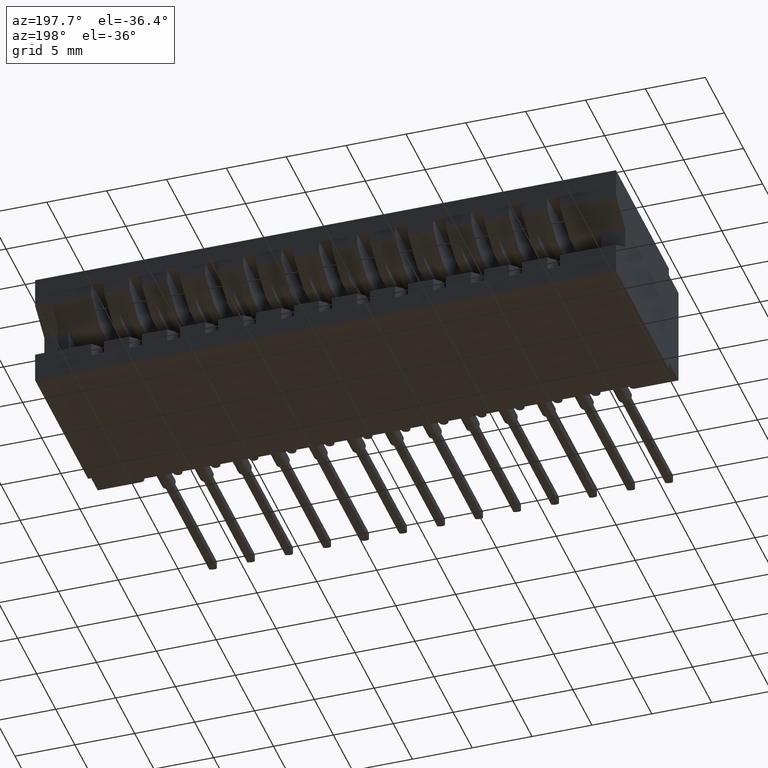
[diagram: clean part render]
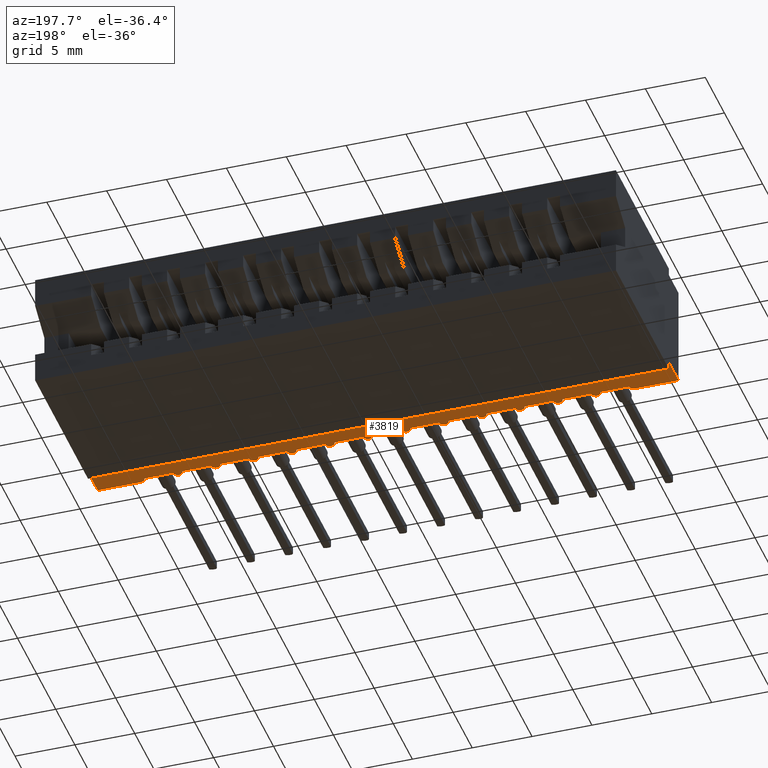
[diagram: same view with one face highlighted and labeled with its STEP entity id]
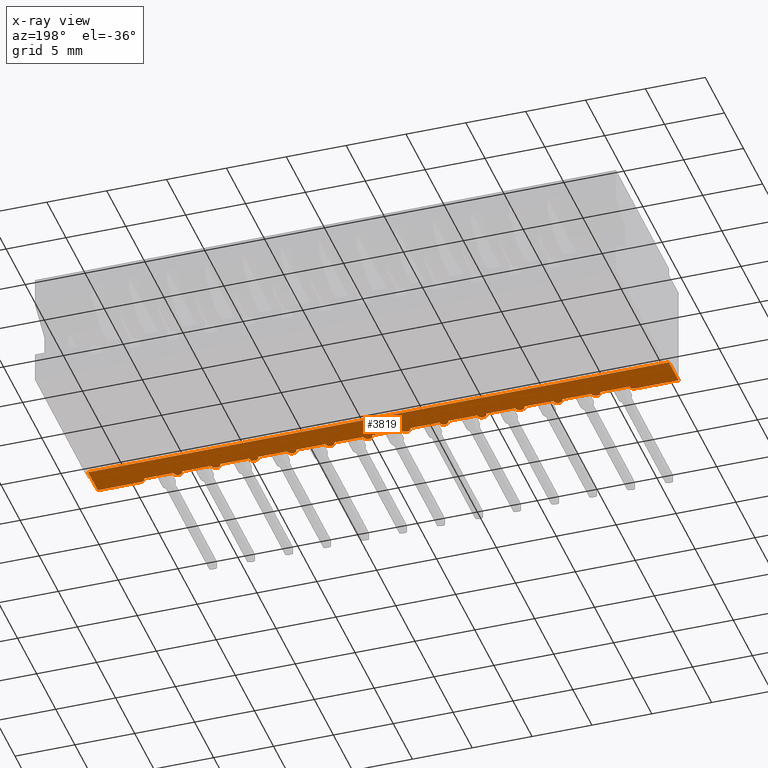
[diagram: x-ray of the same camera — body ghosted, the highlighted face saturated]
A machine part, auxiliary view. The second image highlights one B-rep face of the part: STEP entity #3819.
The next image is the same camera in x-ray: the body ghosted, the highlighted face saturated — about 0% of this face is hidden behind the body in this view.
In plain terms, the highlighted planar face has unit normal (0, 0, 1).
Its self-contained STEP definition (entity closure, byte-faithful):
#3 = LINE ( 'NONE', #16365, #18993 ) ;
#11 = LINE ( 'NONE', #23707, #7784 ) ;
#78 = CARTESIAN_POINT ( 'NONE',  ( 1.657499999999999529, 0.01499999999999997169, -0.3649999999999999911 ) ) ;
#289 = VERTEX_POINT ( 'NONE', #14253 ) ;
#305 = CARTESIAN_POINT ( 'NONE',  ( 1.909999999999999920, 0.0000000000000000000, -0.3649999999999999911 ) ) ;
#367 = DIRECTION ( 'NONE',  ( -0.0000000000000000000, -0.0000000000000000000, -1.000000000000000000 ) ) ;
#404 = ORIENTED_EDGE ( 'NONE', *, *, #23722, .F. ) ;
#445 = CIRCLE ( 'NONE', #5417, 0.01499999999999997689 ) ;
#456 = CARTESIAN_POINT ( 'NONE',  ( 0.6839999999999996083, 0.01499999999999996302, -0.3649999999999999911 ) ) ;
#746 = AXIS2_PLACEMENT_3D ( 'NONE', #16876, #5905, #9654 ) ;
#812 = CIRCLE ( 'NONE', #14254, 0.01499999999999997689 ) ;
#927 = DIRECTION ( 'NONE',  ( 1.000000000000000000, 0.0000000000000000000, 0.0000000000000000000 ) ) ;
#994 = VECTOR ( 'NONE', #19040, 39.37007874015748143 ) ;
#1013 = VERTEX_POINT ( 'NONE', #5692 ) ;
#1192 = ORIENTED_EDGE ( 'NONE', *, *, #19619, .F. ) ;
#1257 = DIRECTION ( 'NONE',  ( 1.000000000000000000, 0.0000000000000000000, 0.0000000000000000000 ) ) ;
#1279 = VECTOR ( 'NONE', #14321, 39.37007874015748143 ) ;
#1344 = EDGE_CURVE ( 'NONE', #21808, #8223, #14830, .T. ) ;
#1346 = DIRECTION ( 'NONE',  ( 0.0000000000000000000, 1.000000000000000000, 0.0000000000000000000 ) ) ;
#1418 = ORIENTED_EDGE ( 'NONE', *, *, #14898, .T. ) ;
#1490 = VECTOR ( 'NONE', #2899, 39.37007874015748143 ) ;
#1604 = LINE ( 'NONE', #7256, #14148 ) ;
#1723 = EDGE_CURVE ( 'NONE', #7006, #11802, #11, .T. ) ;
#1998 = ORIENTED_EDGE ( 'NONE', *, *, #8717, .F. ) ;
#2004 = EDGE_CURVE ( 'NONE', #11294, #20401, #2978, .T. ) ;
#2370 = ORIENTED_EDGE ( 'NONE', *, *, #3331, .T. ) ;
#2393 = EDGE_CURVE ( 'NONE', #11654, #14388, #7788, .T. ) ;
#2439 = VERTEX_POINT ( 'NONE', #20782 ) ;
#2530 = CARTESIAN_POINT ( 'NONE',  ( 1.502499999999999503, 0.01499999999999997169, -0.3649999999999999911 ) ) ;
#2607 = AXIS2_PLACEMENT_3D ( 'NONE', #8562, #17700, #20964 ) ;
#2624 = DIRECTION ( 'NONE',  ( 1.000000000000000000, -0.0000000000000000000, -2.307304048702925122E-16 ) ) ;
#2731 = VERTEX_POINT ( 'NONE', #78 ) ;
#2733 = AXIS2_PLACEMENT_3D ( 'NONE', #2844, #14042, #14275 ) ;
#2757 = VECTOR ( 'NONE', #8185, 39.37007874015748143 ) ;
#2838 = DIRECTION ( 'NONE',  ( 0.0000000000000000000, 0.0000000000000000000, 1.000000000000000000 ) ) ;
#2839 = EDGE_CURVE ( 'NONE', #11433, #18374, #7875, .T. ) ;
#2844 = CARTESIAN_POINT ( 'NONE',  ( 0.7674999999999996270, 0.01499999999999997169, -0.3649999999999999911 ) ) ;
#2872 = ORIENTED_EDGE ( 'NONE', *, *, #4339, .F. ) ;
#2894 = CARTESIAN_POINT ( 'NONE',  ( 1.909999999999999920, 0.0000000000000000000, -0.3649999999999999911 ) ) ;
#2899 = DIRECTION ( 'NONE',  ( 1.000000000000000000, -0.0000000000000000000, -2.307304048702925122E-16 ) ) ;
#2939 = VECTOR ( 'NONE', #8953, 39.37007874015748143 ) ;
#2978 = LINE ( 'NONE', #10207, #22774 ) ;
#3026 = CIRCLE ( 'NONE', #22626, 0.01500000000000001159 ) ;
#3081 = VECTOR ( 'NONE', #12192, 39.37007874015748143 ) ;
#3203 = EDGE_CURVE ( 'NONE', #15241, #3333, #12042, .T. ) ;
#3331 = EDGE_CURVE ( 'NONE', #19778, #5446, #12629, .T. ) ;
#3333 = VERTEX_POINT ( 'NONE', #3702 ) ;
#3348 = CARTESIAN_POINT ( 'NONE',  ( 1.157499999999999751, 0.01499999999999997169, -0.3649999999999999911 ) ) ;
#3415 = DIRECTION ( 'NONE',  ( 1.000000000000000000, -0.0000000000000000000, -2.307304048702925122E-16 ) ) ;
#3466 = ORIENTED_EDGE ( 'NONE', *, *, #5259, .F. ) ;
#3543 = VERTEX_POINT ( 'NONE', #9948 ) ;
#3553 = DIRECTION ( 'NONE',  ( 0.0000000000000000000, 0.0000000000000000000, 1.000000000000000000 ) ) ;
#3634 = CARTESIAN_POINT ( 'NONE',  ( 1.392499999999999627, 0.01499999999999997169, -0.3649999999999999911 ) ) ;
#3650 = DIRECTION ( 'NONE',  ( 0.0000000000000000000, 0.0000000000000000000, 1.000000000000000000 ) ) ;
#3702 = CARTESIAN_POINT ( 'NONE',  ( 1.252499999999999503, 0.01499999999999997169, -0.3649999999999999911 ) ) ;
#3789 = CIRCLE ( 'NONE', #6457, 0.01499999999999997689 ) ;
#3819 = ADVANCED_FACE ( 'NONE', ( #18598 ), #11500, .F. ) ;
#4021 = VECTOR ( 'NONE', #8564, 39.37007874015748143 ) ;
#4167 = EDGE_CURVE ( 'NONE', #11577, #4278, #23267, .T. ) ;
#4278 = VERTEX_POINT ( 'NONE', #2530 ) ;
#4312 = ORIENTED_EDGE ( 'NONE', *, *, #5236, .F. ) ;
#4339 = EDGE_CURVE ( 'NONE', #10346, #18213, #19870, .T. ) ;
#4448 = DIRECTION ( 'NONE',  ( 0.0000000000000000000, 0.0000000000000000000, 1.000000000000000000 ) ) ;
#4610 = EDGE_CURVE ( 'NONE', #18374, #5446, #6358, .T. ) ;
#4764 = ORIENTED_EDGE ( 'NONE', *, *, #8822, .T. ) ;
#4950 = CARTESIAN_POINT ( 'NONE',  ( 0.1574999999999997236, 0.01499999999999997169, -0.3649999999999999911 ) ) ;
#4956 = DIRECTION ( 'NONE',  ( 0.0000000000000000000, 0.0000000000000000000, 1.000000000000000000 ) ) ;
#5111 = DIRECTION ( 'NONE',  ( 0.0000000000000000000, 0.0000000000000000000, 1.000000000000000000 ) ) ;
#5236 = EDGE_CURVE ( 'NONE', #20401, #2439, #6051, .T. ) ;
#5259 = EDGE_CURVE ( 'NONE', #10938, #2731, #812, .T. ) ;
#5309 = CARTESIAN_POINT ( 'NONE',  ( 1.909999999999999920, 0.0000000000000000000, -0.3649999999999999911 ) ) ;
#5346 = DIRECTION ( 'NONE',  ( 1.000000000000000000, 0.0000000000000000000, 0.0000000000000000000 ) ) ;
#5350 = ORIENTED_EDGE ( 'NONE', *, *, #19303, .F. ) ;
#5417 = AXIS2_PLACEMENT_3D ( 'NONE', #6658, #4956, #1257 ) ;
#5446 = VERTEX_POINT ( 'NONE', #7524 ) ;
#5536 = DIRECTION ( 'NONE',  ( 0.0000000000000000000, 0.0000000000000000000, 1.000000000000000000 ) ) ;
#5692 = CARTESIAN_POINT ( 'NONE',  ( 1.532499999999999529, 0.01499999999999997169, -0.3649999999999999911 ) ) ;
#5726 = VECTOR ( 'NONE', #3415, 39.37007874015748143 ) ;
#5732 = EDGE_LOOP ( 'NONE', ( #404, #3466, #18938, #8465, #20448, #22661, #2872, #18670, #23442, #17366, #14878, #1192, #10544, #18298, #9575, #8849, #8757, #15620, #5350, #1998, #16289, #11770, #11437, #4312, #6164, #1418, #9061, #2370, #17419, #18704, #4764, #11850 ) ) ;
#5905 = DIRECTION ( 'NONE',  ( 0.0000000000000000000, 0.0000000000000000000, 1.000000000000000000 ) ) ;
#5966 = DIRECTION ( 'NONE',  ( 1.000000000000000000, -0.0000000000000000000, -2.307304048702925122E-16 ) ) ;
#6021 = LINE ( 'NONE', #13393, #1490 ) ;
#6051 = CIRCLE ( 'NONE', #15399, 0.01500000000000001159 ) ;
#6158 = CARTESIAN_POINT ( 'NONE',  ( 0.7824999999999997513, 0.01499999999999997169, -0.3649999999999999911 ) ) ;
#6164 = ORIENTED_EDGE ( 'NONE', *, *, #2004, .F. ) ;
#6299 = CARTESIAN_POINT ( 'NONE',  ( 0.3924999999999996825, 0.01499999999999997169, -0.3649999999999999911 ) ) ;
#6358 = LINE ( 'NONE', #15040, #22347 ) ;
#6457 = AXIS2_PLACEMENT_3D ( 'NONE', #15480, #2838, #927 ) ;
#6495 = CARTESIAN_POINT ( 'NONE',  ( 0.3774999999999996692, 0.01499999999999997169, -0.3649999999999999911 ) ) ;
#6658 = CARTESIAN_POINT ( 'NONE',  ( 1.142499999999999627, 0.01499999999999997169, -0.3649999999999999911 ) ) ;
#6659 = AXIS2_PLACEMENT_3D ( 'NONE', #10526, #3553, #20164 ) ;
#6768 = CARTESIAN_POINT ( 'NONE',  ( 1.433999999999999719, 0.01499999999999996302, -0.3649999999999999911 ) ) ;
#6818 = CARTESIAN_POINT ( 'NONE',  ( 0.0000000000000000000, 0.0000000000000000000, -0.3649999999999999911 ) ) ;
#6823 = CIRCLE ( 'NONE', #2607, 0.01499999999999997689 ) ;
#6962 = LINE ( 'NONE', #17572, #1279 ) ;
#6975 = DIRECTION ( 'NONE',  ( 1.000000000000000000, -0.0000000000000000000, -2.307304048702925122E-16 ) ) ;
#7006 = VERTEX_POINT ( 'NONE', #11718 ) ;
#7254 = CARTESIAN_POINT ( 'NONE',  ( 0.8089999999999996083, 0.01499999999999996302, -0.3649999999999999911 ) ) ;
#7256 = CARTESIAN_POINT ( 'NONE',  ( 0.3089999999999996083, 0.01499999999999996302, -0.3649999999999999911 ) ) ;
#7270 = CARTESIAN_POINT ( 'NONE',  ( 0.2524999999999996692, 0.01499999999999997169, -0.3649999999999999911 ) ) ;
#7524 = CARTESIAN_POINT ( 'NONE',  ( 0.0000000000000000000, 0.1000000000000000056, -0.3649999999999999911 ) ) ;
#7591 = VERTEX_POINT ( 'NONE', #14432 ) ;
#7784 = VECTOR ( 'NONE', #6975, 39.37007874015748143 ) ;
#7788 = LINE ( 'NONE', #456, #9969 ) ;
#7875 = LINE ( 'NONE', #22660, #8388 ) ;
#8185 = DIRECTION ( 'NONE',  ( 1.000000000000000000, -0.0000000000000000000, -2.307304048702925122E-16 ) ) ;
#8223 = VERTEX_POINT ( 'NONE', #17483 ) ;
#8388 = VECTOR ( 'NONE', #1346, 39.37007874015748143 ) ;
#8397 = AXIS2_PLACEMENT_3D ( 'NONE', #3634, #5536, #12906 ) ;
#8445 = EDGE_CURVE ( 'NONE', #1013, #10938, #23249, .T. ) ;
#8465 = ORIENTED_EDGE ( 'NONE', *, *, #12641, .F. ) ;
#8501 = DIRECTION ( 'NONE',  ( 0.0000000000000000000, 0.0000000000000000000, 1.000000000000000000 ) ) ;
#8562 = CARTESIAN_POINT ( 'NONE',  ( 1.267499999999999627, 0.01499999999999997169, -0.3649999999999999911 ) ) ;
#8564 = DIRECTION ( 'NONE',  ( 1.000000000000000000, -0.0000000000000000000, -2.307304048702925122E-16 ) ) ;
#8717 = EDGE_CURVE ( 'NONE', #12897, #7591, #12443, .T. ) ;
#8757 = ORIENTED_EDGE ( 'NONE', *, *, #2393, .F. ) ;
#8759 = AXIS2_PLACEMENT_3D ( 'NONE', #305, #16550, #11263 ) ;
#8822 = EDGE_CURVE ( 'NONE', #11433, #17112, #6962, .T. ) ;
#8849 = ORIENTED_EDGE ( 'NONE', *, *, #15902, .F. ) ;
#8853 = CARTESIAN_POINT ( 'NONE',  ( 1.627499999999999503, 0.01499999999999997169, -0.3649999999999999911 ) ) ;
#8953 = DIRECTION ( 'NONE',  ( 1.000000000000000000, -0.0000000000000000000, -2.307304048702925122E-16 ) ) ;
#9061 = ORIENTED_EDGE ( 'NONE', *, *, #11712, .T. ) ;
#9223 = VECTOR ( 'NONE', #10444, 39.37007874015748143 ) ;
#9269 = DIRECTION ( 'NONE',  ( 1.000000000000000000, 0.0000000000000000000, 0.0000000000000000000 ) ) ;
#9575 = ORIENTED_EDGE ( 'NONE', *, *, #1344, .F. ) ;
#9654 = DIRECTION ( 'NONE',  ( 1.000000000000000000, 0.0000000000000000000, 0.0000000000000000000 ) ) ;
#9767 = EDGE_CURVE ( 'NONE', #14576, #17112, #10899, .T. ) ;
#9794 = VERTEX_POINT ( 'NONE', #6495 ) ;
#9880 = CARTESIAN_POINT ( 'NONE',  ( 0.4074999999999996958, 0.01499999999999997169, -0.3649999999999999911 ) ) ;
#9948 = CARTESIAN_POINT ( 'NONE',  ( 0.1424999999999997102, 0.0000000000000000000, -0.3649999999999999911 ) ) ;
#9969 = VECTOR ( 'NONE', #5966, 39.37007874015748143 ) ;
#10122 = CARTESIAN_POINT ( 'NONE',  ( 0.6574999999999997513, 0.01499999999999997169, -0.3649999999999999911 ) ) ;
#10126 = EDGE_CURVE ( 'NONE', #11707, #12897, #3, .T. ) ;
#10207 = CARTESIAN_POINT ( 'NONE',  ( 0.1839999999999996083, 0.01499999999999996302, -0.3649999999999999911 ) ) ;
#10221 = CARTESIAN_POINT ( 'NONE',  ( 1.909999999999999920, 0.1000000000000000056, -0.3649999999999999911 ) ) ;
#10346 = VERTEX_POINT ( 'NONE', #22717 ) ;
#10444 = DIRECTION ( 'NONE',  ( 1.000000000000000000, -0.0000000000000000000, -2.307304048702925122E-16 ) ) ;
#10526 = CARTESIAN_POINT ( 'NONE',  ( 1.767499999999999627, 0.01499999999999997169, -0.3649999999999999911 ) ) ;
#10544 = ORIENTED_EDGE ( 'NONE', *, *, #1723, .F. ) ;
#10811 = AXIS2_PLACEMENT_3D ( 'NONE', #6299, #11261, #17501 ) ;
#10899 = CIRCLE ( 'NONE', #6659, 0.01499999999999997689 ) ;
#10938 = VERTEX_POINT ( 'NONE', #8853 ) ;
#11261 = DIRECTION ( 'NONE',  ( 0.0000000000000000000, 0.0000000000000000000, 1.000000000000000000 ) ) ;
#11263 = DIRECTION ( 'NONE',  ( 1.000000000000000000, 0.0000000000000000000, -0.0000000000000000000 ) ) ;
#11294 = VERTEX_POINT ( 'NONE', #4950 ) ;
#11433 = VERTEX_POINT ( 'NONE', #5309 ) ;
#11437 = ORIENTED_EDGE ( 'NONE', *, *, #14267, .F. ) ;
#11500 = PLANE ( 'NONE',  #8759 ) ;
#11577 = VERTEX_POINT ( 'NONE', #16637 ) ;
#11654 = VERTEX_POINT ( 'NONE', #10122 ) ;
#11707 = VERTEX_POINT ( 'NONE', #9880 ) ;
#11712 = EDGE_CURVE ( 'NONE', #3543, #19778, #15655, .T. ) ;
#11718 = CARTESIAN_POINT ( 'NONE',  ( 0.9074999999999996403, 0.01499999999999997169, -0.3649999999999999911 ) ) ;
#11735 = CARTESIAN_POINT ( 'NONE',  ( 1.308999999999999941, 0.01499999999999996302, -0.3649999999999999911 ) ) ;
#11770 = ORIENTED_EDGE ( 'NONE', *, *, #16280, .F. ) ;
#11802 = VERTEX_POINT ( 'NONE', #14774 ) ;
#11850 = ORIENTED_EDGE ( 'NONE', *, *, #9767, .F. ) ;
#12042 = LINE ( 'NONE', #13716, #9223 ) ;
#12192 = DIRECTION ( 'NONE',  ( 1.000000000000000000, -0.0000000000000000000, -2.307304048702925122E-16 ) ) ;
#12443 = CIRCLE ( 'NONE', #23560, 0.01499999999999997689 ) ;
#12629 = LINE ( 'NONE', #6818, #13459 ) ;
#12634 = AXIS2_PLACEMENT_3D ( 'NONE', #23744, #3650, #17968 ) ;
#12641 = EDGE_CURVE ( 'NONE', #4278, #1013, #3789, .T. ) ;
#12897 = VERTEX_POINT ( 'NONE', #13185 ) ;
#12906 = DIRECTION ( 'NONE',  ( 1.000000000000000000, 0.0000000000000000000, 0.0000000000000000000 ) ) ;
#13185 = CARTESIAN_POINT ( 'NONE',  ( 0.5024999999999996136, 0.01499999999999997169, -0.3649999999999999911 ) ) ;
#13393 = CARTESIAN_POINT ( 'NONE',  ( 1.058999999999999497, 0.01499999999999996302, -0.3649999999999999911 ) ) ;
#13397 = EDGE_CURVE ( 'NONE', #8223, #7006, #14566, .T. ) ;
#13425 = EDGE_CURVE ( 'NONE', #20176, #15425, #6021, .T. ) ;
#13459 = VECTOR ( 'NONE', #21641, 39.37007874015748143 ) ;
#13716 = CARTESIAN_POINT ( 'NONE',  ( 1.183999999999999497, 0.01499999999999996302, -0.3649999999999999911 ) ) ;
#13782 = CIRCLE ( 'NONE', #12634, 0.01499999999999997689 ) ;
#13988 = CARTESIAN_POINT ( 'NONE',  ( 1.752499999999999503, 0.01499999999999997169, -0.3649999999999999911 ) ) ;
#14042 = DIRECTION ( 'NONE',  ( 0.0000000000000000000, 0.0000000000000000000, 1.000000000000000000 ) ) ;
#14045 = DIRECTION ( 'NONE',  ( 1.000000000000000000, 0.0000000000000000000, 0.0000000000000000000 ) ) ;
#14148 = VECTOR ( 'NONE', #22061, 39.37007874015748143 ) ;
#14253 = CARTESIAN_POINT ( 'NONE',  ( 0.6274999999999996136, 0.01499999999999997169, -0.3649999999999999911 ) ) ;
#14254 = AXIS2_PLACEMENT_3D ( 'NONE', #14278, #5111, #5346 ) ;
#14267 = EDGE_CURVE ( 'NONE', #2439, #9794, #1604, .T. ) ;
#14275 = DIRECTION ( 'NONE',  ( 1.000000000000000000, 0.0000000000000000000, 0.0000000000000000000 ) ) ;
#14278 = CARTESIAN_POINT ( 'NONE',  ( 1.642499999999999849, 0.01499999999999997169, -0.3649999999999999911 ) ) ;
#14283 = EDGE_CURVE ( 'NONE', #289, #11654, #13782, .T. ) ;
#14289 = CIRCLE ( 'NONE', #10811, 0.01499999999999997689 ) ;
#14321 = DIRECTION ( 'NONE',  ( -1.000000000000000000, -0.0000000000000000000, -0.0000000000000000000 ) ) ;
#14388 = VERTEX_POINT ( 'NONE', #16043 ) ;
#14432 = CARTESIAN_POINT ( 'NONE',  ( 0.5324999999999997513, 0.01499999999999997169, -0.3649999999999999911 ) ) ;
#14566 = CIRCLE ( 'NONE', #746, 0.01499999999999997689 ) ;
#14576 = VERTEX_POINT ( 'NONE', #13988 ) ;
#14672 = EDGE_CURVE ( 'NONE', #3333, #10346, #6823, .T. ) ;
#14774 = CARTESIAN_POINT ( 'NONE',  ( 1.002499999999999725, 0.01499999999999997169, -0.3649999999999999911 ) ) ;
#14830 = LINE ( 'NONE', #7254, #2939 ) ;
#14878 = ORIENTED_EDGE ( 'NONE', *, *, #13425, .F. ) ;
#14898 = EDGE_CURVE ( 'NONE', #11294, #3543, #3026, .T. ) ;
#14934 = CARTESIAN_POINT ( 'NONE',  ( 1.377499999999999725, 0.01499999999999997169, -0.3649999999999999911 ) ) ;
#15040 = CARTESIAN_POINT ( 'NONE',  ( 1.909999999999999920, 0.1000000000000000056, -0.3649999999999999911 ) ) ;
#15139 = CARTESIAN_POINT ( 'NONE',  ( 1.127499999999999725, 0.01499999999999997169, -0.3649999999999999911 ) ) ;
#15241 = VERTEX_POINT ( 'NONE', #3348 ) ;
#15399 = AXIS2_PLACEMENT_3D ( 'NONE', #17646, #8501, #14045 ) ;
#15425 = VERTEX_POINT ( 'NONE', #15139 ) ;
#15480 = CARTESIAN_POINT ( 'NONE',  ( 1.517499999999999849, 0.01499999999999997169, -0.3649999999999999911 ) ) ;
#15620 = ORIENTED_EDGE ( 'NONE', *, *, #14283, .F. ) ;
#15655 = LINE ( 'NONE', #2894, #994 ) ;
#15662 = CIRCLE ( 'NONE', #19137, 0.01499999999999997689 ) ;
#15795 = CIRCLE ( 'NONE', #2733, 0.01499999999999997689 ) ;
#15902 = EDGE_CURVE ( 'NONE', #14388, #21808, #15795, .T. ) ;
#16043 = CARTESIAN_POINT ( 'NONE',  ( 0.7524999999999997247, 0.01499999999999997169, -0.3649999999999999911 ) ) ;
#16280 = EDGE_CURVE ( 'NONE', #9794, #11707, #14289, .T. ) ;
#16289 = ORIENTED_EDGE ( 'NONE', *, *, #10126, .F. ) ;
#16337 = EDGE_CURVE ( 'NONE', #15425, #15241, #445, .T. ) ;
#16365 = CARTESIAN_POINT ( 'NONE',  ( 0.4339999999999996083, 0.01499999999999996302, -0.3649999999999999911 ) ) ;
#16550 = DIRECTION ( 'NONE',  ( 0.0000000000000000000, 0.0000000000000000000, 1.000000000000000000 ) ) ;
#16637 = CARTESIAN_POINT ( 'NONE',  ( 1.407499999999999751, 0.01499999999999997169, -0.3649999999999999911 ) ) ;
#16735 = DIRECTION ( 'NONE',  ( 1.000000000000000000, 0.0000000000000000000, 0.0000000000000000000 ) ) ;
#16876 = CARTESIAN_POINT ( 'NONE',  ( 0.8924999999999997380, 0.01499999999999997169, -0.3649999999999999911 ) ) ;
#17112 = VERTEX_POINT ( 'NONE', #18898 ) ;
#17366 = ORIENTED_EDGE ( 'NONE', *, *, #16337, .F. ) ;
#17419 = ORIENTED_EDGE ( 'NONE', *, *, #4610, .F. ) ;
#17450 = CARTESIAN_POINT ( 'NONE',  ( 1.683999999999999497, 0.01499999999999996302, -0.3649999999999999911 ) ) ;
#17483 = CARTESIAN_POINT ( 'NONE',  ( 0.8774999999999997247, 0.01499999999999997169, -0.3649999999999999911 ) ) ;
#17501 = DIRECTION ( 'NONE',  ( 1.000000000000000000, 0.0000000000000000000, 0.0000000000000000000 ) ) ;
#17572 = CARTESIAN_POINT ( 'NONE',  ( 1.909999999999999920, 0.0000000000000000000, -0.3649999999999999911 ) ) ;
#17646 = CARTESIAN_POINT ( 'NONE',  ( 0.2674999999999996825, 0.01499999999999997169, -0.3649999999999999911 ) ) ;
#17700 = DIRECTION ( 'NONE',  ( 0.0000000000000000000, 0.0000000000000000000, 1.000000000000000000 ) ) ;
#17711 = CARTESIAN_POINT ( 'NONE',  ( 0.5589999999999996083, 0.01499999999999996302, -0.3649999999999999911 ) ) ;
#17968 = DIRECTION ( 'NONE',  ( 1.000000000000000000, 0.0000000000000000000, 0.0000000000000000000 ) ) ;
#18213 = VERTEX_POINT ( 'NONE', #14934 ) ;
#18298 = ORIENTED_EDGE ( 'NONE', *, *, #13397, .F. ) ;
#18374 = VERTEX_POINT ( 'NONE', #10221 ) ;
#18598 = FACE_OUTER_BOUND ( 'NONE', #5732, .T. ) ;
#18670 = ORIENTED_EDGE ( 'NONE', *, *, #14672, .F. ) ;
#18704 = ORIENTED_EDGE ( 'NONE', *, *, #2839, .F. ) ;
#18740 = CARTESIAN_POINT ( 'NONE',  ( 0.0000000000000000000, 0.0000000000000000000, -0.3649999999999999911 ) ) ;
#18769 = CARTESIAN_POINT ( 'NONE',  ( 0.1424999999999997102, 0.01499999999999997169, -0.3649999999999999911 ) ) ;
#18894 = DIRECTION ( 'NONE',  ( -1.000000000000000000, -0.0000000000000000000, -0.0000000000000000000 ) ) ;
#18898 = CARTESIAN_POINT ( 'NONE',  ( 1.767499999999999627, 0.0000000000000000000, -0.3649999999999999911 ) ) ;
#18938 = ORIENTED_EDGE ( 'NONE', *, *, #8445, .F. ) ;
#18993 = VECTOR ( 'NONE', #21896, 39.37007874015748143 ) ;
#19023 = LINE ( 'NONE', #17450, #2757 ) ;
#19028 = CARTESIAN_POINT ( 'NONE',  ( 1.017499999999999627, 0.01499999999999997169, -0.3649999999999999911 ) ) ;
#19040 = DIRECTION ( 'NONE',  ( -1.000000000000000000, -0.0000000000000000000, -0.0000000000000000000 ) ) ;
#19137 = AXIS2_PLACEMENT_3D ( 'NONE', #19028, #4448, #16735 ) ;
#19303 = EDGE_CURVE ( 'NONE', #7591, #289, #22559, .T. ) ;
#19380 = DIRECTION ( 'NONE',  ( 1.000000000000000000, 0.0000000000000000000, 0.0000000000000000000 ) ) ;
#19490 = CIRCLE ( 'NONE', #8397, 0.01499999999999997689 ) ;
#19619 = EDGE_CURVE ( 'NONE', #11802, #20176, #15662, .T. ) ;
#19778 = VERTEX_POINT ( 'NONE', #18740 ) ;
#19870 = LINE ( 'NONE', #11735, #4021 ) ;
#20164 = DIRECTION ( 'NONE',  ( 1.000000000000000000, 0.0000000000000000000, 0.0000000000000000000 ) ) ;
#20176 = VERTEX_POINT ( 'NONE', #23643 ) ;
#20401 = VERTEX_POINT ( 'NONE', #7270 ) ;
#20448 = ORIENTED_EDGE ( 'NONE', *, *, #4167, .F. ) ;
#20653 = VECTOR ( 'NONE', #21328, 39.37007874015748143 ) ;
#20782 = CARTESIAN_POINT ( 'NONE',  ( 0.2824999999999996958, 0.01499999999999997169, -0.3649999999999999911 ) ) ;
#20876 = EDGE_CURVE ( 'NONE', #18213, #11577, #19490, .T. ) ;
#20964 = DIRECTION ( 'NONE',  ( 1.000000000000000000, 0.0000000000000000000, 0.0000000000000000000 ) ) ;
#21328 = DIRECTION ( 'NONE',  ( 1.000000000000000000, -0.0000000000000000000, -2.307304048702925122E-16 ) ) ;
#21447 = CARTESIAN_POINT ( 'NONE',  ( 1.558999999999999719, 0.01499999999999996302, -0.3649999999999999911 ) ) ;
#21641 = DIRECTION ( 'NONE',  ( 0.0000000000000000000, 1.000000000000000000, 0.0000000000000000000 ) ) ;
#21808 = VERTEX_POINT ( 'NONE', #6158 ) ;
#21896 = DIRECTION ( 'NONE',  ( 1.000000000000000000, -0.0000000000000000000, -2.307304048702925122E-16 ) ) ;
#22061 = DIRECTION ( 'NONE',  ( 1.000000000000000000, -0.0000000000000000000, -2.307304048702925122E-16 ) ) ;
#22347 = VECTOR ( 'NONE', #18894, 39.37007874015748143 ) ;
#22559 = LINE ( 'NONE', #17711, #20653 ) ;
#22626 = AXIS2_PLACEMENT_3D ( 'NONE', #18769, #367, #9269 ) ;
#22660 = CARTESIAN_POINT ( 'NONE',  ( 1.909999999999999920, 0.0000000000000000000, -0.3649999999999999911 ) ) ;
#22661 = ORIENTED_EDGE ( 'NONE', *, *, #20876, .F. ) ;
#22717 = CARTESIAN_POINT ( 'NONE',  ( 1.282499999999999751, 0.01499999999999997169, -0.3649999999999999911 ) ) ;
#22774 = VECTOR ( 'NONE', #2624, 39.37007874015748143 ) ;
#22981 = DIRECTION ( 'NONE',  ( 0.0000000000000000000, 0.0000000000000000000, 1.000000000000000000 ) ) ;
#23220 = CARTESIAN_POINT ( 'NONE',  ( 0.5174999999999996270, 0.01499999999999997169, -0.3649999999999999911 ) ) ;
#23249 = LINE ( 'NONE', #21447, #3081 ) ;
#23267 = LINE ( 'NONE', #6768, #5726 ) ;
#23442 = ORIENTED_EDGE ( 'NONE', *, *, #3203, .F. ) ;
#23560 = AXIS2_PLACEMENT_3D ( 'NONE', #23220, #22981, #19380 ) ;
#23643 = CARTESIAN_POINT ( 'NONE',  ( 1.032499999999999751, 0.01499999999999997169, -0.3649999999999999911 ) ) ;
#23707 = CARTESIAN_POINT ( 'NONE',  ( 0.9339999999999994973, 0.01499999999999996302, -0.3649999999999999911 ) ) ;
#23722 = EDGE_CURVE ( 'NONE', #2731, #14576, #19023, .T. ) ;
#23744 = CARTESIAN_POINT ( 'NONE',  ( 0.6424999999999996270, 0.01499999999999997169, -0.3649999999999999911 ) ) ;